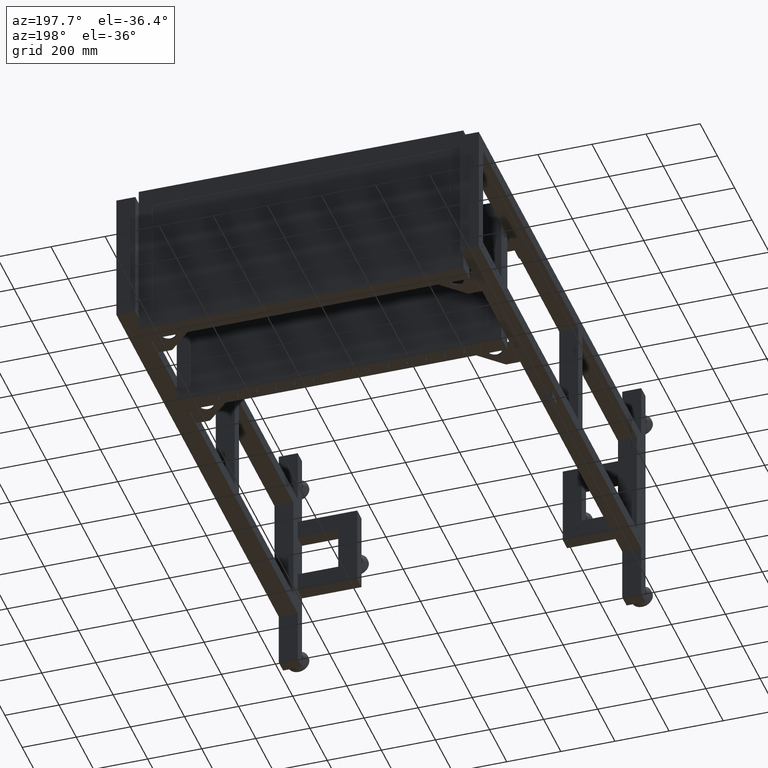
[diagram: clean part render]
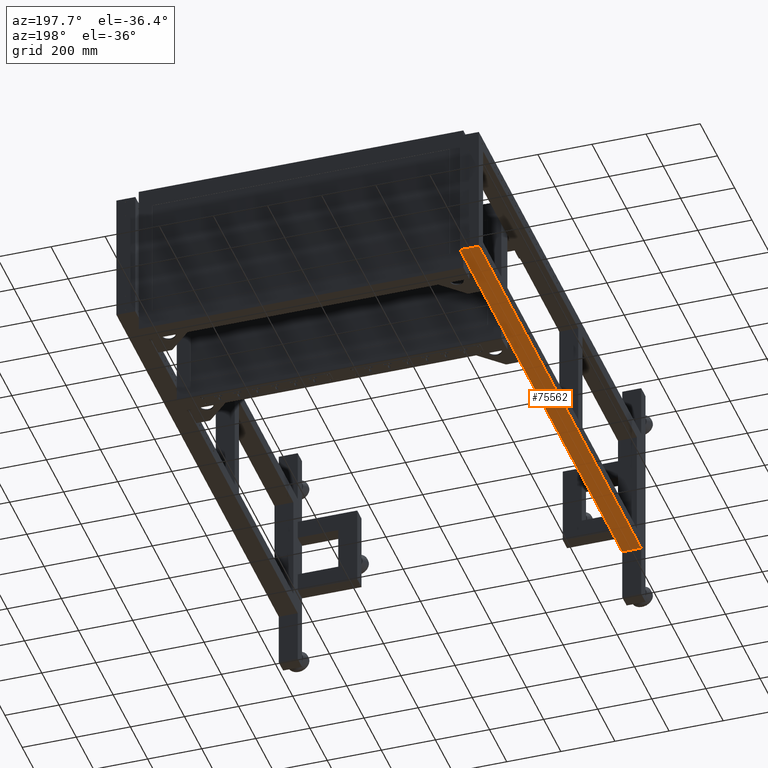
[diagram: same view with one face highlighted and labeled with its STEP entity id]
A machine part, auxiliary view. The second image highlights one B-rep face of the part: STEP entity #75562.
In plain terms, the highlighted planar face has unit normal (0, 0, -1).
Its self-contained STEP definition (entity closure, byte-faithful):
#1194 = CARTESIAN_POINT ( 'NONE',  ( -1268.172487437185964, 926.9410804020139949, -250.0000000000000000 ) ) ;
#1380 = VERTEX_POINT ( 'NONE', #11883 ) ;
#2144 = EDGE_CURVE ( 'NONE', #20196, #20485, #5600, .T. ) ;
#2914 = CARTESIAN_POINT ( 'NONE',  ( -1338.172487437185055, -844.5589195979889610, -250.0000000000000000 ) ) ;
#3039 = LINE ( 'NONE', #10348, #68480 ) ;
#3597 = CARTESIAN_POINT ( 'NONE',  ( -1321.172487437185055, 131.4410804020110675, -250.0000000000000000 ) ) ;
#3901 = EDGE_CURVE ( 'NONE', #12728, #11282, #39493, .T. ) ;
#4604 = EDGE_CURVE ( 'NONE', #7927, #79205, #75510, .T. ) ;
#5547 = CARTESIAN_POINT ( 'NONE',  ( -1338.172487437185964, 1036.441080402011039, -250.0000000000000000 ) ) ;
#5600 = LINE ( 'NONE', #66545, #19454 ) ;
#5608 = ORIENTED_EDGE ( 'NONE', *, *, #14137, .T. ) ;
#5918 = EDGE_CURVE ( 'NONE', #1380, #72173, #51930, .T. ) ;
#6116 = CARTESIAN_POINT ( 'NONE',  ( -1338.172487437185055, 919.4410804020136538, -250.0000000000000000 ) ) ;
#7113 = FACE_BOUND ( 'NONE', #19933, .T. ) ;
#7570 = ORIENTED_EDGE ( 'NONE', *, *, #63123, .F. ) ;
#7887 = EDGE_CURVE ( 'NONE', #12507, #11282, #15303, .T. ) ;
#7927 = VERTEX_POINT ( 'NONE', #43329 ) ;
#10348 = CARTESIAN_POINT ( 'NONE',  ( -1268.156444386293742, 986.4410804020136538, -250.0000000000000000 ) ) ;
#11218 = DIRECTION ( 'NONE',  ( -1.000000000000000000, 0.000000000000000000, 0.000000000000000000 ) ) ;
#11282 = VERTEX_POINT ( 'NONE', #59164 ) ;
#11883 = CARTESIAN_POINT ( 'NONE',  ( -1268.156444386293742, 926.9410804020139949, -250.0000000000000000 ) ) ;
#12133 = DIRECTION ( 'NONE',  ( 0.000000000000000000, 1.000000000000000000, 0.000000000000000000 ) ) ;
#12507 = VERTEX_POINT ( 'NONE', #19330 ) ;
#12728 = VERTEX_POINT ( 'NONE', #51385 ) ;
#12806 = DIRECTION ( 'NONE',  ( 0.000000000000000000, 0.000000000000000000, -1.000000000000000000 ) ) ;
#13691 = EDGE_CURVE ( 'NONE', #30232, #12507, #61327, .T. ) ;
#13872 = VECTOR ( 'NONE', #37136, 1000.000000000000000 ) ;
#14137 = EDGE_CURVE ( 'NONE', #30232, #72173, #43644, .T. ) ;
#14737 = ORIENTED_EDGE ( 'NONE', *, *, #42470, .F. ) ;
#14827 = DIRECTION ( 'NONE',  ( -1.000000000000000078E-15, -1.000000000000000000, -0.000000000000000000 ) ) ;
#15303 = LINE ( 'NONE', #5547, #53172 ) ;
#15507 = ORIENTED_EDGE ( 'NONE', *, *, #3901, .T. ) ;
#16205 = CARTESIAN_POINT ( 'NONE',  ( -1285.172487437185055, 85.44108040201103904, -250.0000000000000000 ) ) ;
#16286 = LINE ( 'NONE', #21586, #24932 ) ;
#19330 = CARTESIAN_POINT ( 'NONE',  ( -1268.172487437185964, 1036.441080402011039, -250.0000000000000000 ) ) ;
#19454 = VECTOR ( 'NONE', #73433, 1000.000000000000000 ) ;
#19933 = EDGE_LOOP ( 'NONE', ( #41858, #14737, #7570, #69492 ) ) ;
#20196 = VERTEX_POINT ( 'NONE', #16205 ) ;
#20485 = VERTEX_POINT ( 'NONE', #46923 ) ;
#21586 = CARTESIAN_POINT ( 'NONE',  ( -1321.172487437185055, 131.4410804020110675, -250.0000000000000000 ) ) ;
#23001 = VECTOR ( 'NONE', #40144, 1000.000000000000000 ) ;
#23629 = EDGE_LOOP ( 'NONE', ( #15507, #68239, #53794, #5608, #27271, #77637, #71730, #46232, #56655 ) ) ;
#23932 = VERTEX_POINT ( 'NONE', #61742 ) ;
#24932 = VECTOR ( 'NONE', #53288, 1000.000000000000000 ) ;
#26229 = VECTOR ( 'NONE', #76875, 1000.000000000000000 ) ;
#26563 = FACE_OUTER_BOUND ( 'NONE', #23629, .T. ) ;
#27271 = ORIENTED_EDGE ( 'NONE', *, *, #5918, .F. ) ;
#30232 = VERTEX_POINT ( 'NONE', #72897 ) ;
#31795 = EDGE_CURVE ( 'NONE', #34775, #20196, #47611, .T. ) ;
#31894 = CARTESIAN_POINT ( 'NONE',  ( -1338.172487437185055, -844.5589195979889610, -250.0000000000000000 ) ) ;
#33225 = CARTESIAN_POINT ( 'NONE',  ( -1338.172487437185055, -844.5589195979889610, -250.0000000000000000 ) ) ;
#33750 = AXIS2_PLACEMENT_3D ( 'NONE', #31894, #12806, #44885 ) ;
#34775 = VERTEX_POINT ( 'NONE', #62941 ) ;
#35437 = CARTESIAN_POINT ( 'NONE',  ( -1285.172487437185055, 85.44108040201103904, -250.0000000000000000 ) ) ;
#37136 = DIRECTION ( 'NONE',  ( 0.000000000000000000, -1.000000000000000000, 0.000000000000000000 ) ) ;
#39493 = LINE ( 'NONE', #2914, #26229 ) ;
#40144 = DIRECTION ( 'NONE',  ( -1.000000000000000000, 0.000000000000000000, 0.000000000000000000 ) ) ;
#40555 = DIRECTION ( 'NONE',  ( -7.542275982507828797E-17, 1.000000000000000000, 0.000000000000000000 ) ) ;
#40939 = LINE ( 'NONE', #47031, #42363 ) ;
#41858 = ORIENTED_EDGE ( 'NONE', *, *, #31795, .F. ) ;
#42363 = VECTOR ( 'NONE', #40555, 1000.000000000000000 ) ;
#42470 = EDGE_CURVE ( 'NONE', #71352, #34775, #16286, .T. ) ;
#43058 = CARTESIAN_POINT ( 'NONE',  ( -1268.172487437184827, -844.5589195979889610, -250.0000000000000000 ) ) ;
#43329 = CARTESIAN_POINT ( 'NONE',  ( -1268.172487437184827, -844.5589195979889610, -250.0000000000000000 ) ) ;
#43644 = LINE ( 'NONE', #68436, #13872 ) ;
#44885 = DIRECTION ( 'NONE',  ( 1.000000000000000000, 0.000000000000000000, 0.000000000000000000 ) ) ;
#45456 = CARTESIAN_POINT ( 'NONE',  ( -1338.172487437185055, 926.9410804020139949, -250.0000000000000000 ) ) ;
#46232 = ORIENTED_EDGE ( 'NONE', *, *, #4604, .F. ) ;
#46923 = CARTESIAN_POINT ( 'NONE',  ( -1321.172487437185055, 85.44108040201103904, -250.0000000000000000 ) ) ;
#47031 = CARTESIAN_POINT ( 'NONE',  ( -1321.172487437185055, 85.44108040201103904, -250.0000000000000000 ) ) ;
#47037 = CARTESIAN_POINT ( 'NONE',  ( -1268.172487437184827, 919.4410804020135402, -250.0000000000000000 ) ) ;
#47611 = LINE ( 'NONE', #35437, #61668 ) ;
#50588 = PLANE ( 'NONE',  #33750 ) ;
#51385 = CARTESIAN_POINT ( 'NONE',  ( -1338.172487437185055, -844.5589195979889610, -250.0000000000000000 ) ) ;
#51930 = LINE ( 'NONE', #45456, #23001 ) ;
#52930 = VECTOR ( 'NONE', #62183, 1000.000000000000000 ) ;
#53172 = VECTOR ( 'NONE', #11218, 1000.000000000000000 ) ;
#53288 = DIRECTION ( 'NONE',  ( 1.000000000000000000, 3.083952846180990083E-15, 0.000000000000000000 ) ) ;
#53794 = ORIENTED_EDGE ( 'NONE', *, *, #13691, .F. ) ;
#54021 = EDGE_CURVE ( 'NONE', #23932, #79205, #80056, .T. ) ;
#56655 = ORIENTED_EDGE ( 'NONE', *, *, #77889, .T. ) ;
#57894 = VECTOR ( 'NONE', #73112, 1000.000000000000000 ) ;
#59164 = CARTESIAN_POINT ( 'NONE',  ( -1338.172487437185964, 1036.441080402011039, -250.0000000000000000 ) ) ;
#60215 = DIRECTION ( 'NONE',  ( 0.000000000000000000, -1.000000000000000000, 0.000000000000000000 ) ) ;
#61327 = LINE ( 'NONE', #67836, #57894 ) ;
#61668 = VECTOR ( 'NONE', #60215, 1000.000000000000000 ) ;
#61742 = CARTESIAN_POINT ( 'NONE',  ( -1268.156444386293742, 919.4410804020135402, -250.0000000000000000 ) ) ;
#62183 = DIRECTION ( 'NONE',  ( -1.000000000000000000, 1.585669478376821542E-15, -0.000000000000000000 ) ) ;
#62941 = CARTESIAN_POINT ( 'NONE',  ( -1285.172487437185055, 131.4410804020110675, -250.0000000000000000 ) ) ;
#63123 = EDGE_CURVE ( 'NONE', #20485, #71352, #40939, .T. ) ;
#64510 = LINE ( 'NONE', #33225, #75378 ) ;
#65550 = EDGE_CURVE ( 'NONE', #1380, #23932, #3039, .T. ) ;
#66545 = CARTESIAN_POINT ( 'NONE',  ( -1321.172487437185055, 85.44108040201103904, -250.0000000000000000 ) ) ;
#67836 = CARTESIAN_POINT ( 'NONE',  ( -1268.172487437185964, 986.4410804020109254, -250.0000000000000000 ) ) ;
#68239 = ORIENTED_EDGE ( 'NONE', *, *, #7887, .F. ) ;
#68436 = CARTESIAN_POINT ( 'NONE',  ( -1268.172487437185964, -844.5589195979889610, -250.0000000000000000 ) ) ;
#68480 = VECTOR ( 'NONE', #14827, 1000.000000000000000 ) ;
#69492 = ORIENTED_EDGE ( 'NONE', *, *, #2144, .F. ) ;
#71352 = VERTEX_POINT ( 'NONE', #3597 ) ;
#71730 = ORIENTED_EDGE ( 'NONE', *, *, #54021, .T. ) ;
#72173 = VERTEX_POINT ( 'NONE', #1194 ) ;
#72897 = CARTESIAN_POINT ( 'NONE',  ( -1268.172487437185964, 996.9410804020127443, -250.0000000000000000 ) ) ;
#73112 = DIRECTION ( 'NONE',  ( 0.000000000000000000, 1.000000000000000000, 0.000000000000000000 ) ) ;
#73433 = DIRECTION ( 'NONE',  ( -1.000000000000000000, 0.000000000000000000, 0.000000000000000000 ) ) ;
#75126 = DIRECTION ( 'NONE',  ( -1.000000000000000000, 0.000000000000000000, 0.000000000000000000 ) ) ;
#75378 = VECTOR ( 'NONE', #75126, 1000.000000000000000 ) ;
#75510 = LINE ( 'NONE', #43058, #79279 ) ;
#75562 = ADVANCED_FACE ( 'NONE', ( #7113, #26563 ), #50588, .T. ) ;
#76875 = DIRECTION ( 'NONE',  ( 0.000000000000000000, 1.000000000000000000, 0.000000000000000000 ) ) ;
#77637 = ORIENTED_EDGE ( 'NONE', *, *, #65550, .T. ) ;
#77889 = EDGE_CURVE ( 'NONE', #7927, #12728, #64510, .T. ) ;
#79205 = VERTEX_POINT ( 'NONE', #47037 ) ;
#79279 = VECTOR ( 'NONE', #12133, 1000.000000000000000 ) ;
#80056 = LINE ( 'NONE', #6116, #52930 ) ;